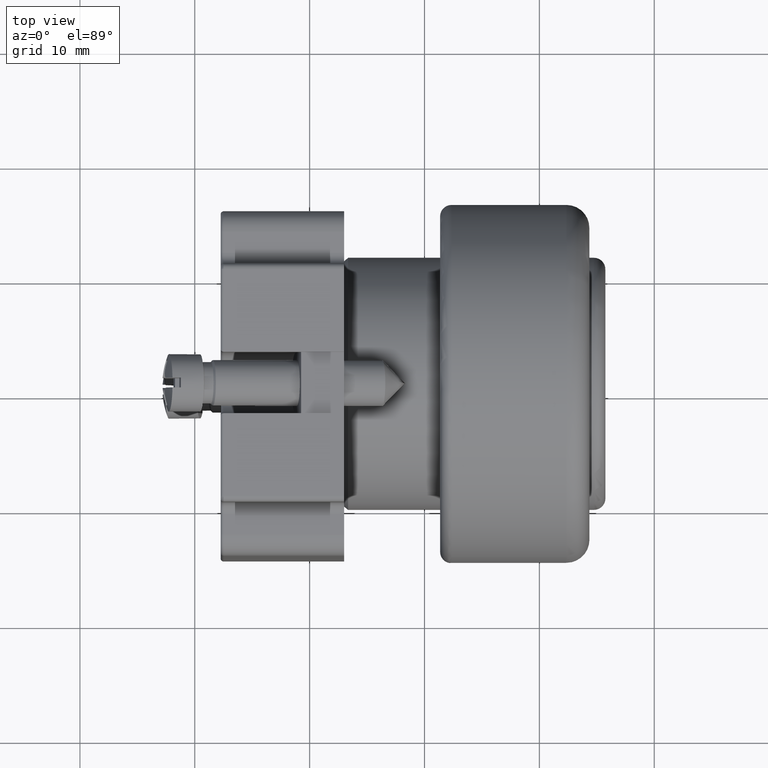
[diagram: clean part render]
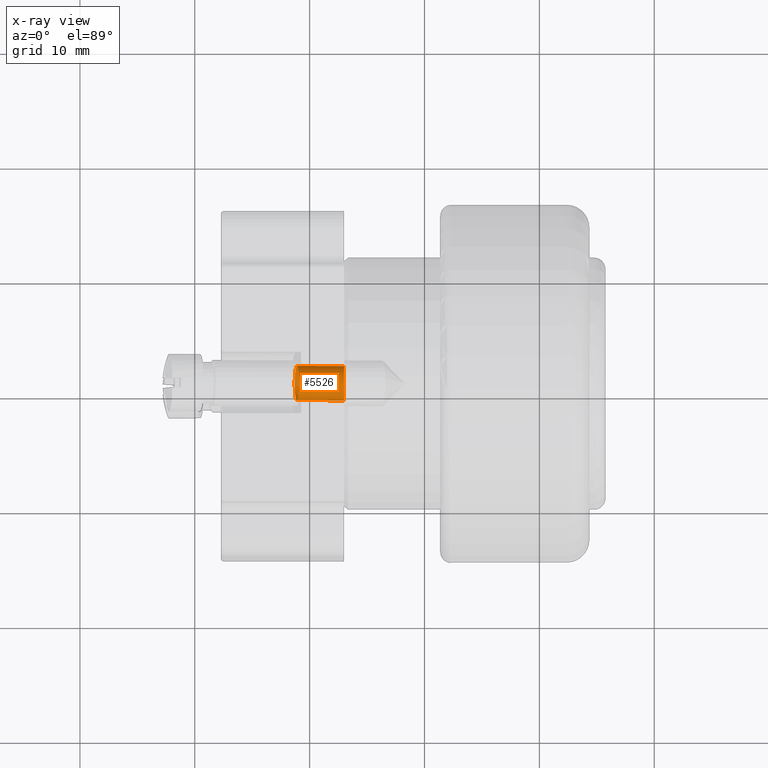
[diagram: x-ray — body ghosted, one internal face saturated and labeled with its STEP entity id]
A machine part, top view, then the same camera in x-ray: the body is ghosted and one INTERNAL B-rep face — a face not visible from any outside direction — is saturated and labeled: STEP entity #5526.
In plain terms, the highlighted face is a freeform B-spline surface patch.
Its self-contained STEP definition (entity closure, byte-faithful):
#5388=CARTESIAN_POINT('',(17.812305177016967,10.142864828157554,0.0));
#5389=VERTEX_POINT('',#5388);
#5390=CARTESIAN_POINT('',(16.299361736146736,10.142864828157554,0.0));
#5391=DIRECTION('',(0.0,0.0,1.0));
#5392=DIRECTION('',(-1.0,0.0,0.0));
#5393=AXIS2_PLACEMENT_3D('',#5390,#5391,#5392);
#5394=ELLIPSE('',#5393,1.512943440870229,1.500000000000000);
#5395=EDGE_CURVE('',#5389,#5389,#5394,.T.);
#5486=CARTESIAN_POINT('',(16.891848076524120,8.642864828157554,4.500380556654996));
#5487=CARTESIAN_POINT('',(16.273585587337223,8.642864828157554,-0.195789288330078));
#5488=CARTESIAN_POINT('',(18.379015368584835,8.642864828157554,4.304591268324918));
#5489=CARTESIAN_POINT('',(17.760752879397938,8.642864828157554,-0.391578576660155));
#5490=CARTESIAN_POINT('',(18.379015368584835,10.142864828157554,4.304591268324918));
#5491=CARTESIAN_POINT('',(17.760752879397938,10.142864828157554,-0.391578576660155));
#5492=CARTESIAN_POINT('',(18.379015368584835,11.642864828157554,4.304591268324918));
#5493=CARTESIAN_POINT('',(17.760752879397938,11.642864828157554,-0.391578576660155));
#5494=CARTESIAN_POINT('',(16.891848076524120,11.642864828157554,4.500380556654996));
#5495=CARTESIAN_POINT('',(16.273585587337223,11.642864828157554,-0.195789288330078));
#5496=CARTESIAN_POINT('',(15.404680784463405,11.642864828157554,4.696169844985073));
#5497=CARTESIAN_POINT('',(14.786418295276507,11.642864828157554,-2.775558E-016));
#5498=CARTESIAN_POINT('',(15.404680784463405,10.142864828157554,4.696169844985073));
#5499=CARTESIAN_POINT('',(14.786418295276508,10.142864828157554,-2.220446E-016));
#5500=CARTESIAN_POINT('',(15.404680784463405,8.642864828157554,4.696169844985073));
#5501=CARTESIAN_POINT('',(14.786418295276507,8.642864828157554,-2.775558E-016));
#5502=CARTESIAN_POINT('',(16.891848076524120,8.642864828157554,4.500380556654996));
#5503=CARTESIAN_POINT('',(16.273585587337223,8.642864828157554,-0.195789288330078));
#5511=(BOUNDED_SURFACE()B_SPLINE_SURFACE(1,2,((#5486,#5488,#5490,#5492,#5494,#5496,#5498,#5500,#5502),(#5487,#5489,#5491,#5493,#5495,#5497,#5499,#5501,#5503)),.UNSPECIFIED.,.F.,.T.,.U.)B_SPLINE_SURFACE_WITH_KNOTS((2,2),(3,2,2,2,3),(-6.925485711769186,-3.767690438799086),(0.0,2.356194490192345,4.712388980384691,7.068583470577035,9.424777960769381),.UNSPECIFIED.)GEOMETRIC_REPRESENTATION_ITEM()RATIONAL_B_SPLINE_SURFACE(((1.0,0.707106781186548,1.0,0.707106781186548,1.0,0.707106781186548,1.0,0.707106781186548,1.0),(1.0,0.707106781186548,1.0,0.707106781186548,1.0,0.707106781186548,1.0,0.707106781186548,1.0)))REPRESENTATION_ITEM('')SURFACE());
#5512=ORIENTED_EDGE('',*,*,#5395,.F.);
#5513=EDGE_LOOP('',(#5512));
#5514=FACE_OUTER_BOUND('',#5513,.T.);
#5515=CARTESIAN_POINT('',(16.841174079877227,11.642864828157556,4.115473338216141));
#5516=VERTEX_POINT('',#5515);
#5517=CARTESIAN_POINT('',(16.841174079877227,10.142864828157554,4.115473338216140));
#5518=DIRECTION('',(-0.130526192220052,0.0,-0.991444861373810));
#5519=DIRECTION('',(0.0,1.0,0.0));
#5520=AXIS2_PLACEMENT_3D('',#5517,#5518,#5519);
#5521=CIRCLE('',#5520,1.500000000000000);
#5522=EDGE_CURVE('',#5516,#5516,#5521,.T.);
#5523=ORIENTED_EDGE('',*,*,#5522,.F.);
#5524=EDGE_LOOP('',(#5523));
#5525=FACE_BOUND('',#5524,.T.);
#5526=ADVANCED_FACE('',(#5514,#5525),#5511,.F.);